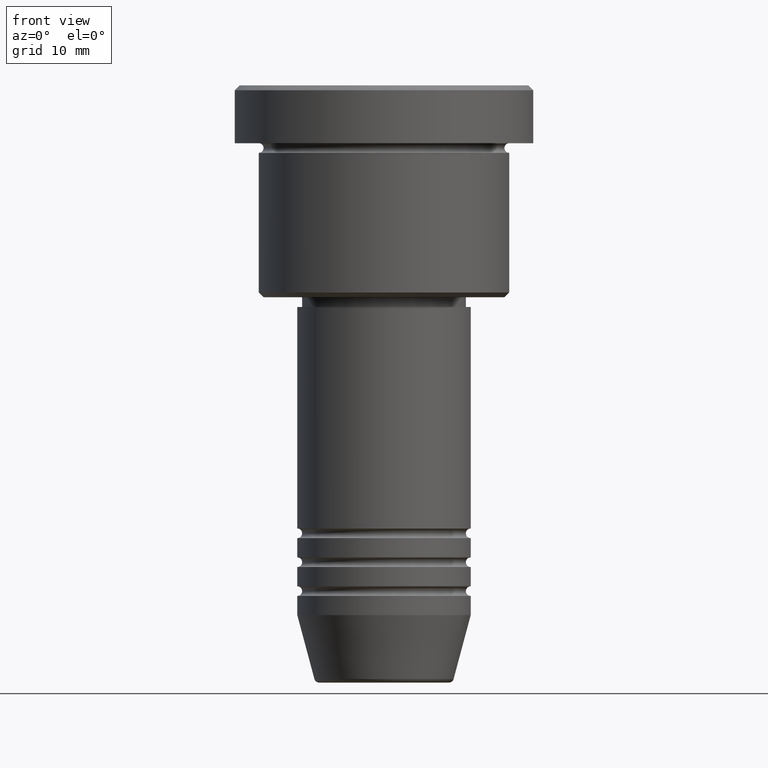
[diagram: clean part render]
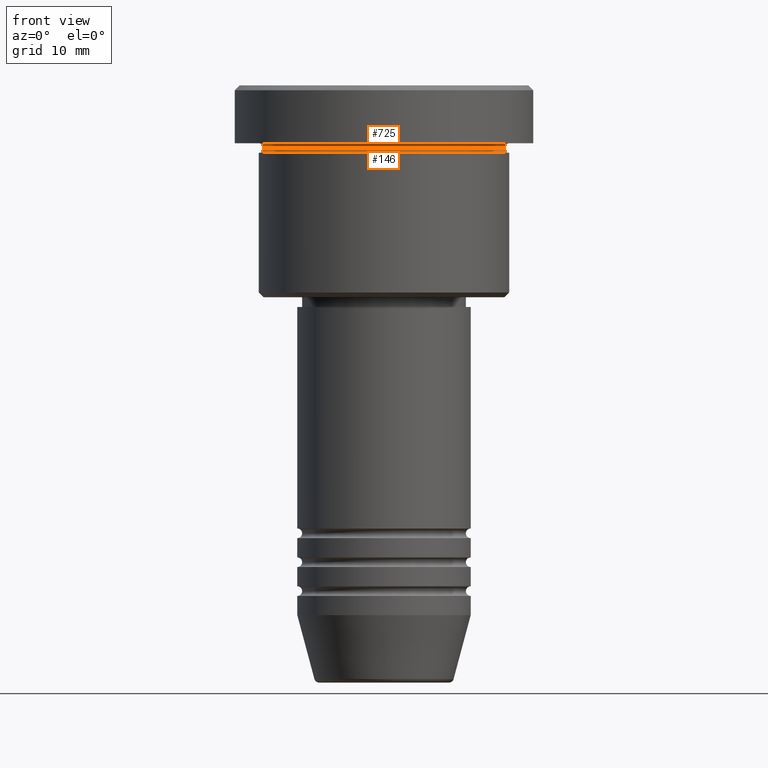
[diagram: same view with one multi-face feature highlighted, each face labeled with its STEP entity id]
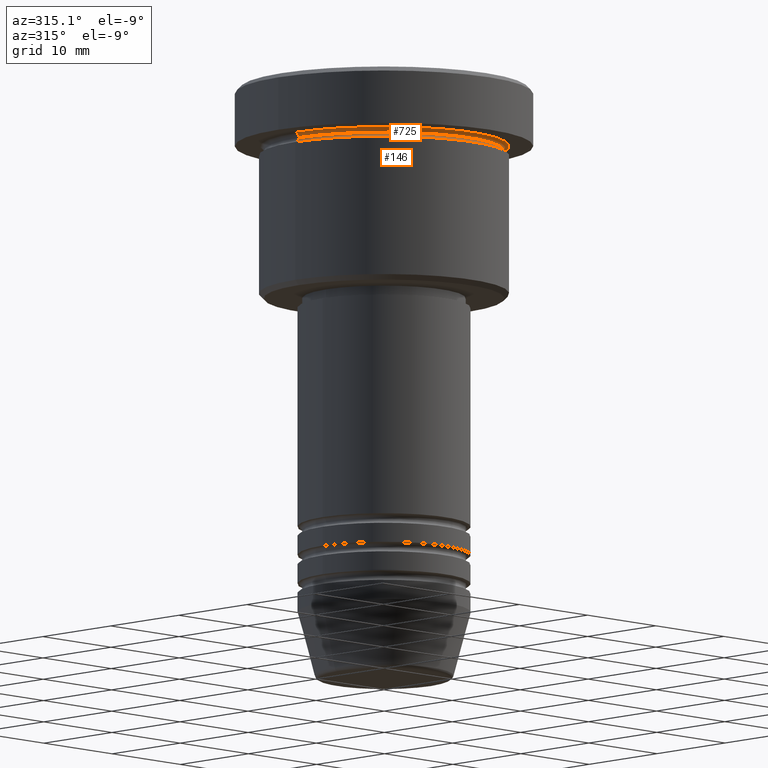
[diagram: same view with one multi-face feature highlighted, each face labeled with its STEP entity id]
A machine part, front view. The highlighted faces form ONE feature: a constant-radius fillet chain: 2 tangent blend faces with common blend radius 0.5 mm. The faces share edges in the B-rep.
A second angle (auxiliary view) of the same feature is appended — it is thin or edge-on in the first view.
Their STEP definitions:
[1] entity #725 (Torus):
#32 = CIRCLE ( 'NONE', #194, 0.5000000000000004441 ) ;
#48 = ORIENTED_EDGE ( 'NONE', *, *, #53, .T. ) ;
#53 = EDGE_CURVE ( 'NONE', #890, #521, #78, .T. ) ;
#78 = CIRCLE ( 'NONE', #213, 12.49999999999999822 ) ;
#134 = TOROIDAL_SURFACE ( 'NONE', #420, 13.00000000000000000, 0.5000000000000000000 ) ;
#147 = FACE_OUTER_BOUND ( 'NONE', #877, .T. ) ;
#156 = CARTESIAN_POINT ( 'NONE',  ( 0.000000000000000000, 0.000000000000000000, -6.499999999999995559 ) ) ;
#177 = CARTESIAN_POINT ( 'NONE',  ( 13.00000000000000000, 1.592040838891559095E-15, -6.499999999999995559 ) ) ;
#194 = AXIS2_PLACEMENT_3D ( 'NONE', #177, #539, #486 ) ;
#202 = DIRECTION ( 'NONE',  ( -1.000000000000000000, 0.000000000000000000, 0.000000000000000000 ) ) ;
#209 = CARTESIAN_POINT ( 'NONE',  ( 13.00000000000000000, 1.592040838891559095E-15, -5.999999999999994671 ) ) ;
#210 = VERTEX_POINT ( 'NONE', #209 ) ;
#213 = AXIS2_PLACEMENT_3D ( 'NONE', #156, #703, #986 ) ;
#261 = DIRECTION ( 'NONE',  ( -0.000000000000000000, -1.000000000000000000, -0.000000000000000000 ) ) ;
#315 = ORIENTED_EDGE ( 'NONE', *, *, #995, .T. ) ;
#381 = DIRECTION ( 'NONE',  ( -0.000000000000000000, -0.000000000000000000, 1.000000000000000000 ) ) ;
#420 = AXIS2_PLACEMENT_3D ( 'NONE', #609, #894, #702 ) ;
#486 = DIRECTION ( 'NONE',  ( -1.000000000000000000, -1.224646799147353454E-16, 0.000000000000000000 ) ) ;
#514 = EDGE_CURVE ( 'NONE', #890, #1149, #1108, .T. ) ;
#521 = VERTEX_POINT ( 'NONE', #644 ) ;
#539 = DIRECTION ( 'NONE',  ( -1.224646799147353207E-16, 1.000000000000000000, 0.000000000000000000 ) ) ;
#596 = EDGE_CURVE ( 'NONE', #1149, #210, #893, .T. ) ;
#599 = ORIENTED_EDGE ( 'NONE', *, *, #514, .F. ) ;
#605 = ORIENTED_EDGE ( 'NONE', *, *, #596, .F. ) ;
#609 = CARTESIAN_POINT ( 'NONE',  ( 0.000000000000000000, 0.000000000000000000, -6.499999999999995559 ) ) ;
#630 = CARTESIAN_POINT ( 'NONE',  ( -13.00000000000000000, 0.000000000000000000, -6.499999999999995559 ) ) ;
#644 = CARTESIAN_POINT ( 'NONE',  ( 12.49999999999999822, 0.000000000000000000, -6.499999999999995559 ) ) ;
#702 = DIRECTION ( 'NONE',  ( -1.000000000000000000, 0.000000000000000000, 0.000000000000000000 ) ) ;
#703 = DIRECTION ( 'NONE',  ( -0.000000000000000000, -0.000000000000000000, 1.000000000000000000 ) ) ;
#725 = ADVANCED_FACE ( 'NONE', ( #147 ), #134, .F. ) ;
#772 = AXIS2_PLACEMENT_3D ( 'NONE', #630, #261, #919 ) ;
#867 = AXIS2_PLACEMENT_3D ( 'NONE', #1024, #381, #202 ) ;
#877 = EDGE_LOOP ( 'NONE', ( #48, #315, #605, #599 ) ) ;
#890 = VERTEX_POINT ( 'NONE', #1173 ) ;
#893 = CIRCLE ( 'NONE', #867, 13.00000000000000000 ) ;
#894 = DIRECTION ( 'NONE',  ( 0.000000000000000000, 0.000000000000000000, -1.000000000000000000 ) ) ;
#919 = DIRECTION ( 'NONE',  ( 0.000000000000000000, 0.000000000000000000, -1.000000000000000000 ) ) ;
#986 = DIRECTION ( 'NONE',  ( 1.000000000000000000, 0.000000000000000000, 0.000000000000000000 ) ) ;
#995 = EDGE_CURVE ( 'NONE', #521, #210, #32, .T. ) ;
#1024 = CARTESIAN_POINT ( 'NONE',  ( 0.000000000000000000, 0.000000000000000000, -5.999999999999995559 ) ) ;
#1062 = CARTESIAN_POINT ( 'NONE',  ( -13.00000000000000000, 0.000000000000000000, -5.999999999999994671 ) ) ;
#1108 = CIRCLE ( 'NONE', #772, 0.5000000000000004441 ) ;
#1149 = VERTEX_POINT ( 'NONE', #1062 ) ;
#1173 = CARTESIAN_POINT ( 'NONE',  ( -12.49999999999999822, 1.561424668912875308E-15, -6.499999999999995559 ) ) ;
[2] entity #146 (Torus):
#15 = AXIS2_PLACEMENT_3D ( 'NONE', #1118, #562, #757 ) ;
#17 = EDGE_CURVE ( 'NONE', #521, #901, #732, .T. ) ;
#53 = EDGE_CURVE ( 'NONE', #890, #521, #78, .T. ) ;
#63 = ORIENTED_EDGE ( 'NONE', *, *, #676, .T. ) ;
#71 = DIRECTION ( 'NONE',  ( 0.000000000000000000, -1.000000000000000000, 0.000000000000000000 ) ) ;
#78 = CIRCLE ( 'NONE', #213, 12.49999999999999822 ) ;
#126 = ORIENTED_EDGE ( 'NONE', *, *, #53, .F. ) ;
#146 = ADVANCED_FACE ( 'NONE', ( #203 ), #711, .F. ) ;
#156 = CARTESIAN_POINT ( 'NONE',  ( 0.000000000000000000, 0.000000000000000000, -6.499999999999995559 ) ) ;
#173 = DIRECTION ( 'NONE',  ( 0.000000000000000000, 0.000000000000000000, -1.000000000000000000 ) ) ;
#188 = CARTESIAN_POINT ( 'NONE',  ( 13.00000000000000000, 0.000000000000000000, -6.999999999999995559 ) ) ;
#203 = FACE_OUTER_BOUND ( 'NONE', #508, .T. ) ;
#213 = AXIS2_PLACEMENT_3D ( 'NONE', #156, #703, #986 ) ;
#246 = ORIENTED_EDGE ( 'NONE', *, *, #900, .T. ) ;
#269 = CARTESIAN_POINT ( 'NONE',  ( -13.00000000000000000, 1.592040838891559095E-15, -6.999999999999995559 ) ) ;
#274 = DIRECTION ( 'NONE',  ( 1.224646799147353207E-16, 1.000000000000000000, 0.000000000000000000 ) ) ;
#278 = CIRCLE ( 'NONE', #1066, 13.00000000000000000 ) ;
#448 = CARTESIAN_POINT ( 'NONE',  ( 13.00000000000000000, 0.000000000000000000, -6.499999999999995559 ) ) ;
#451 = CARTESIAN_POINT ( 'NONE',  ( -13.00000000000000000, 1.592040838891559095E-15, -6.499999999999995559 ) ) ;
#478 = CARTESIAN_POINT ( 'NONE',  ( 0.000000000000000000, 0.000000000000000000, -6.999999999999995559 ) ) ;
#493 = AXIS2_PLACEMENT_3D ( 'NONE', #448, #71, #173 ) ;
#508 = EDGE_LOOP ( 'NONE', ( #126, #246, #63, #785 ) ) ;
#519 = VERTEX_POINT ( 'NONE', #269 ) ;
#521 = VERTEX_POINT ( 'NONE', #644 ) ;
#562 = DIRECTION ( 'NONE',  ( -0.000000000000000000, -0.000000000000000000, 1.000000000000000000 ) ) ;
#644 = CARTESIAN_POINT ( 'NONE',  ( 12.49999999999999822, 0.000000000000000000, -6.499999999999995559 ) ) ;
#676 = EDGE_CURVE ( 'NONE', #519, #901, #278, .T. ) ;
#703 = DIRECTION ( 'NONE',  ( -0.000000000000000000, -0.000000000000000000, 1.000000000000000000 ) ) ;
#711 = TOROIDAL_SURFACE ( 'NONE', #15, 13.00000000000000000, 0.5000000000000000000 ) ;
#732 = CIRCLE ( 'NONE', #493, 0.5000000000000004441 ) ;
#757 = DIRECTION ( 'NONE',  ( 1.000000000000000000, 0.000000000000000000, 0.000000000000000000 ) ) ;
#766 = AXIS2_PLACEMENT_3D ( 'NONE', #451, #274, #1087 ) ;
#785 = ORIENTED_EDGE ( 'NONE', *, *, #17, .F. ) ;
#860 = DIRECTION ( 'NONE',  ( 1.000000000000000000, 0.000000000000000000, 0.000000000000000000 ) ) ;
#890 = VERTEX_POINT ( 'NONE', #1173 ) ;
#900 = EDGE_CURVE ( 'NONE', #890, #519, #1158, .T. ) ;
#901 = VERTEX_POINT ( 'NONE', #188 ) ;
#954 = DIRECTION ( 'NONE',  ( -0.000000000000000000, -0.000000000000000000, 1.000000000000000000 ) ) ;
#986 = DIRECTION ( 'NONE',  ( 1.000000000000000000, 0.000000000000000000, 0.000000000000000000 ) ) ;
#1066 = AXIS2_PLACEMENT_3D ( 'NONE', #478, #954, #860 ) ;
#1087 = DIRECTION ( 'NONE',  ( -1.000000000000000000, 1.224646799147353454E-16, 0.000000000000000000 ) ) ;
#1118 = CARTESIAN_POINT ( 'NONE',  ( 0.000000000000000000, 0.000000000000000000, -6.499999999999995559 ) ) ;
#1158 = CIRCLE ( 'NONE', #766, 0.5000000000000004441 ) ;
#1173 = CARTESIAN_POINT ( 'NONE',  ( -12.49999999999999822, 1.561424668912875308E-15, -6.499999999999995559 ) ) ;